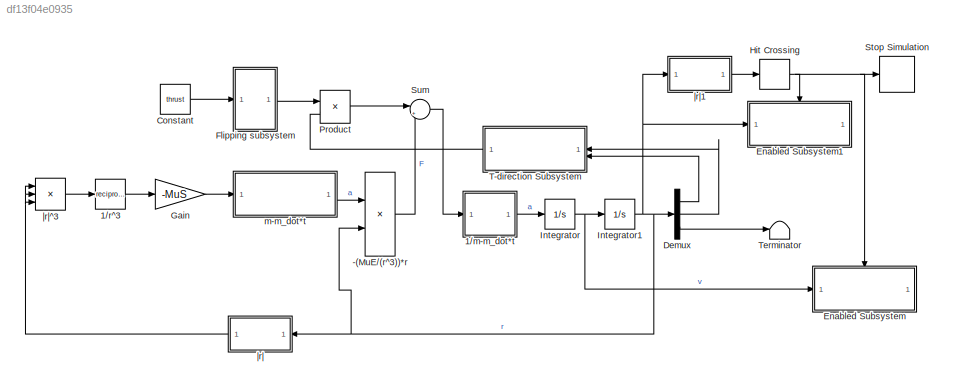
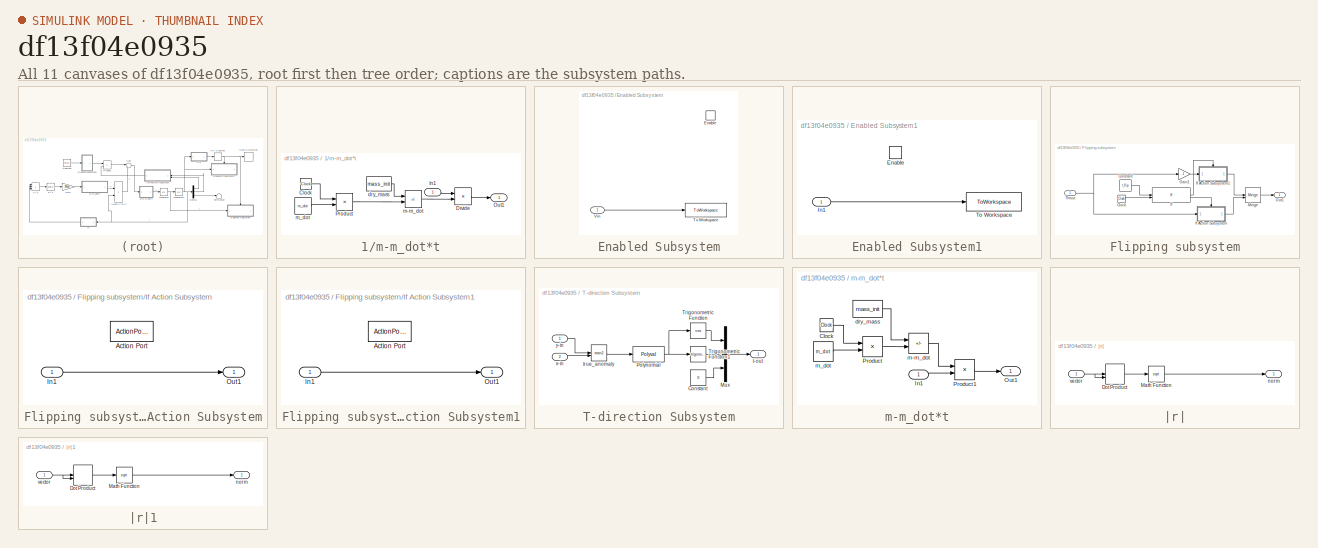
[diagram: thumbnail index - all 11 canvases of the model, root first then tree order]
MODEL slx_df13f04e0935
KIND model
CONFIG AbsTol = auto
CONFIG EnableMultiTasking = on
CONFIG FixedStep = maxstep
CONFIG MaxStep = maxstep
CONFIG MinStep = auto
CONFIG RelTol = 1e-3
CONFIG SampleTimeConstraint = Unconstrained
CONFIG SolverName = FixedStepAuto
CONFIG StartTime = 0.0
CONFIG StopTime = tstop
BLOCK [Product] -(MuE//(r^3))*r
BLOCK [SubSystem] 1//m-m_dot*t
BLOCK [Clock] 1//m-m_dot*t/Clock
BLOCK [Product] 1//m-m_dot*t/Divide
  Inputs = */
BLOCK [Inport] 1//m-m_dot*t/In1
BLOCK [Outport] 1//m-m_dot*t/Out1
BLOCK [Product] 1//m-m_dot*t/Product
BLOCK [Constant] 1//m-m_dot*t/dry_mass
  Value = mass_init
BLOCK [Sum] 1//m-m_dot*t/m-m_dot
  IconShape = rectangular
  Inputs = +-
BLOCK [Constant] 1//m-m_dot*t/m_dot
  Value = m_dot
BLOCK [Math] 1//r^3
  Operator = reciprocal
BLOCK [Constant] Constant
  Value = thrust
BLOCK [Demux] Demux
  DisplayOption = none
  Outputs = 3
BLOCK [SubSystem] Enabled Subsystem
  TreatAsAtomicUnit = on
BLOCK [EnablePort] Enabled Subsystem/Enable
BLOCK [ToWorkspace] Enabled Subsystem/To Workspace
  FixptAsFi = on
  MaxDataPoints = inf
  SampleTime = -1
  VariableName = vel
BLOCK [Inport] Enabled Subsystem/Vin
BLOCK [SubSystem] Enabled Subsystem1
  TreatAsAtomicUnit = on
BLOCK [EnablePort] Enabled Subsystem1/Enable
BLOCK [Inport] Enabled Subsystem1/In1
BLOCK [ToWorkspace] Enabled Subsystem1/To Workspace
  FixptAsFi = on
  MaxDataPoints = inf
  SampleTime = -1
  SaveFormat = Timeseries
  VariableName = pos
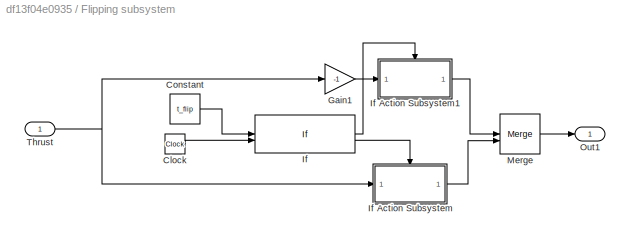
BLOCK [SubSystem] Flipping subsystem
BLOCK [Clock] Flipping subsystem/Clock
BLOCK [Constant] Flipping subsystem/Constant
  Value = t_flip
BLOCK [Gain] Flipping subsystem/Gain1
  Gain = -1
BLOCK [If] Flipping subsystem/If
  IfExpression = u2> u1
  NumInputs = 2
BLOCK [SubSystem] Flipping subsystem/If Action Subsystem
  TreatAsAtomicUnit = on
BLOCK [ActionPort] Flipping subsystem/If Action Subsystem/Action Port
  ActionPortLabel = else
BLOCK [Inport] Flipping subsystem/If Action Subsystem/In1
BLOCK [Outport] Flipping subsystem/If Action Subsystem/Out1
BLOCK [SubSystem] Flipping subsystem/If Action Subsystem1
  TreatAsAtomicUnit = on
BLOCK [ActionPort] Flipping subsystem/If Action Subsystem1/Action Port
  ActionPortLabel = if(u2> u1)
BLOCK [Inport] Flipping subsystem/If Action Subsystem1/In1
BLOCK [Outport] Flipping subsystem/If Action Subsystem1/Out1
BLOCK [Merge] Flipping subsystem/Merge
BLOCK [Outport] Flipping subsystem/Out1
BLOCK [Inport] Flipping subsystem/Thrust
BLOCK [Gain] Gain
  Gain = -MuS
  OutDataTypeStr = Inherit: Same as input
  ParamDataTypeStr = Inherit: Same as input
  SaturateOnIntegerOverflow = on
BLOCK [HitCross] Hit Crossing
  HitCrossingDirection = rising
  HitCrossingOffset = d_o
BLOCK [Integrator] Integrator
  InitialCondition = v0
BLOCK [Integrator] Integrator1
  InitialCondition = r0
BLOCK [Product] Product
BLOCK [Stop] Stop Simulation
BLOCK [Sum] Sum
  Inputs = |++
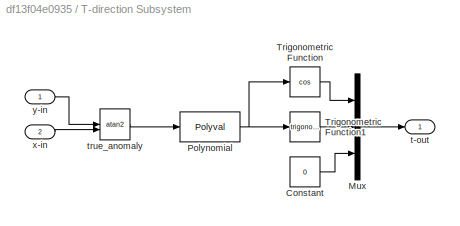
BLOCK [SubSystem] T-direction Subsystem
BLOCK [Constant] T-direction Subsystem/Constant
  Value = 0
BLOCK [Mux] T-direction Subsystem/Mux
  DisplayOption = bar
  Inputs = 3
BLOCK [Polyval] T-direction Subsystem/Polynomial
  Coefs = a_set
BLOCK [Trigonometry] T-direction Subsystem/Trigonometric Function
  Operator = cos
BLOCK [Trigonometry] T-direction Subsystem/Trigonometric Function1
BLOCK [Outport] T-direction Subsystem/t-out
BLOCK [Trigonometry] T-direction Subsystem/true_anomaly
  Operator = atan2
BLOCK [Inport] T-direction Subsystem/x-in
  Port = 2
BLOCK [Inport] T-direction Subsystem/y-in
BLOCK [Terminator] Terminator
BLOCK [SubSystem] m-m_dot*t
BLOCK [Clock] m-m_dot*t/Clock
BLOCK [Inport] m-m_dot*t/In1
BLOCK [Outport] m-m_dot*t/Out1
BLOCK [Product] m-m_dot*t/Product
BLOCK [Product] m-m_dot*t/Product1
BLOCK [Constant] m-m_dot*t/dry_mass
  Value = mass_init
BLOCK [Sum] m-m_dot*t/m-m_dot
  IconShape = rectangular
  Inputs = +-
BLOCK [Constant] m-m_dot*t/m_dot
  Value = m_dot
BLOCK [SubSystem] |r|
BLOCK [DotProduct] |r|/Dot Product
  OutDataTypeStr = Inherit: Inherit via internal rule
BLOCK [Math] |r|/Math Function
  Operator = sqrt
  SignedPower = on
BLOCK [Outport] |r|/norm
  VectorParamsAs1DForOutWhenUnconnected = off
BLOCK [Inport] |r|/vector
BLOCK [SubSystem] |r|1
BLOCK [DotProduct] |r|1/Dot Product
  OutDataTypeStr = Inherit: Inherit via internal rule
BLOCK [Math] |r|1/Math Function
  Operator = sqrt
  SignedPower = on
BLOCK [Outport] |r|1/norm
  VectorParamsAs1DForOutWhenUnconnected = off
BLOCK [Inport] |r|1/vector
BLOCK [Product] |r|^3
  Inputs = 3
LINE -(MuE//(r^3))*r:1 -> Sum:2
LINE 1//m-m_dot*t/Clock:1 -> 1//m-m_dot*t/Product:1
LINE 1//m-m_dot*t/Divide:1 -> 1//m-m_dot*t/Out1:1
LINE 1//m-m_dot*t/In1:1 -> 1//m-m_dot*t/Divide:1
LINE 1//m-m_dot*t/Product:1 -> 1//m-m_dot*t/m-m_dot:2
LINE 1//m-m_dot*t/dry_mass:1 -> 1//m-m_dot*t/m-m_dot:1
LINE 1//m-m_dot*t/m-m_dot:1 -> 1//m-m_dot*t/Divide:2
LINE 1//m-m_dot*t/m_dot:1 -> 1//m-m_dot*t/Product:2
LINE 1//m-m_dot*t:1 -> Integrator:1
LINE 1//r^3:1 -> Gain:1
LINE Constant:1 -> Flipping subsystem:1
LINE Demux:1 -> T-direction Subsystem:2
LINE Demux:2 -> T-direction Subsystem:1
LINE Demux:3 -> Terminator:1
LINE Enabled Subsystem/Vin:1 -> Enabled Subsystem/To Workspace:1
LINE Enabled Subsystem1/In1:1 -> Enabled Subsystem1/To Workspace:1
LINE Flipping subsystem/Clock:1 -> Flipping subsystem/If:2
LINE Flipping subsystem/Constant:1 -> Flipping subsystem/If:1
LINE Flipping subsystem/Gain1:1 -> Flipping subsystem/If Action Subsystem1:1
LINE Flipping subsystem/If Action Subsystem/In1:1 -> Flipping subsystem/If Action Subsystem/Out1:1
LINE Flipping subsystem/If Action Subsystem1/In1:1 -> Flipping subsystem/If Action Subsystem1/Out1:1
LINE Flipping subsystem/If Action Subsystem1:1 -> Flipping subsystem/Merge:1
LINE Flipping subsystem/If Action Subsystem:1 -> Flipping subsystem/Merge:2
LINE Flipping subsystem/If:1 -> Flipping subsystem/If Action Subsystem1:ifaction
LINE Flipping subsystem/If:2 -> Flipping subsystem/If Action Subsystem:ifaction
LINE Flipping subsystem/Merge:1 -> Flipping subsystem/Out1:1
NET Flipping subsystem/Thrust:1 -> Flipping subsystem/Gain1:1, Flipping subsystem/If Action Subsystem:1
LINE Flipping subsystem:1 -> Product:1
LINE Gain:1 -> m-m_dot*t:1
NET Hit Crossing:1 -> Enabled Subsystem1:enable, Enabled Subsystem:enable, Stop Simulation:1
NET Integrator1:1 -> -(MuE//(r^3))*r:2, Demux:1, Enabled Subsystem1:1, |r|1:1, |r|:1
NET Integrator:1 -> Enabled Subsystem:1, Integrator1:1
LINE Product:1 -> Sum:1
LINE Sum:1 -> 1//m-m_dot*t:1
LINE T-direction Subsystem/Constant:1 -> T-direction Subsystem/Mux:3
LINE T-direction Subsystem/Mux:1 -> T-direction Subsystem/t-out:1
NET T-direction Subsystem/Polynomial:1 -> T-direction Subsystem/Trigonometric Function1:1, T-direction Subsystem/Trigonometric Function:1
LINE T-direction Subsystem/Trigonometric Function1:1 -> T-direction Subsystem/Mux:2
LINE T-direction Subsystem/Trigonometric Function:1 -> T-direction Subsystem/Mux:1
LINE T-direction Subsystem/true_anomaly:1 -> T-direction Subsystem/Polynomial:1
LINE T-direction Subsystem/x-in:1 -> T-direction Subsystem/true_anomaly:2
LINE T-direction Subsystem/y-in:1 -> T-direction Subsystem/true_anomaly:1
LINE T-direction Subsystem:1 -> Product:2
LINE m-m_dot*t/Clock:1 -> m-m_dot*t/Product:1
LINE m-m_dot*t/In1:1 -> m-m_dot*t/Product1:2
LINE m-m_dot*t/Product1:1 -> m-m_dot*t/Out1:1
LINE m-m_dot*t/Product:1 -> m-m_dot*t/m-m_dot:2
LINE m-m_dot*t/dry_mass:1 -> m-m_dot*t/m-m_dot:1
LINE m-m_dot*t/m-m_dot:1 -> m-m_dot*t/Product1:1
LINE m-m_dot*t/m_dot:1 -> m-m_dot*t/Product:2
LINE m-m_dot*t:1 -> -(MuE//(r^3))*r:1
LINE |r|/Dot Product:1 -> |r|/Math Function:1
LINE |r|/Math Function:1 -> |r|/norm:1
NET |r|/vector:1 -> |r|/Dot Product:1, |r|/Dot Product:2
LINE |r|1/Dot Product:1 -> |r|1/Math Function:1
LINE |r|1/Math Function:1 -> |r|1/norm:1
NET |r|1/vector:1 -> |r|1/Dot Product:1, |r|1/Dot Product:2
LINE |r|1:1 -> Hit Crossing:1
NET |r|:1 -> |r|^3:1, |r|^3:2, |r|^3:3
LINE |r|^3:1 -> 1//r^3:1
note: NET lines group one-source signal fan-out (src -> all destinations, sorted); 1:1 wires keep LINE
